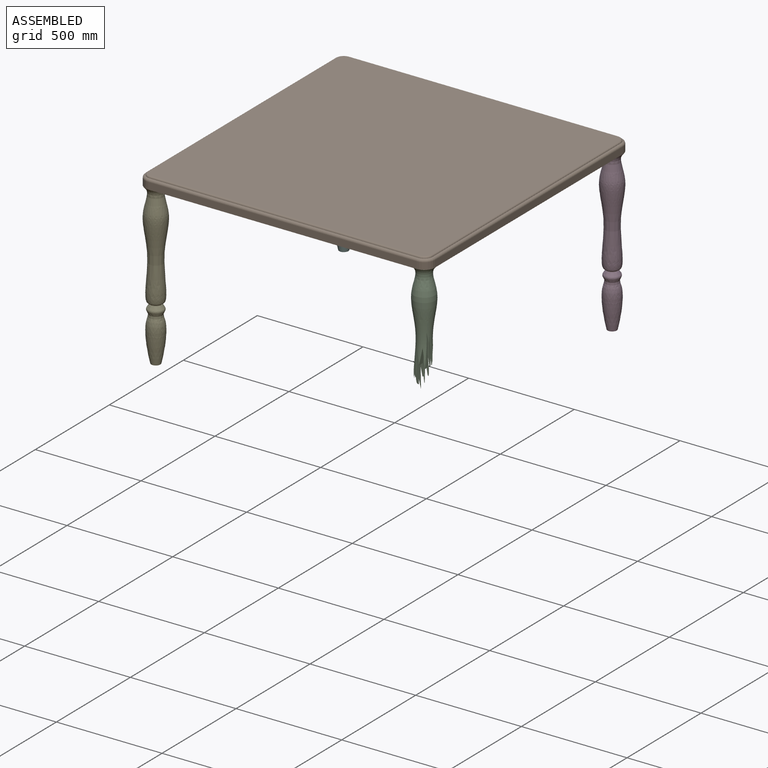
[diagram: assembled view]
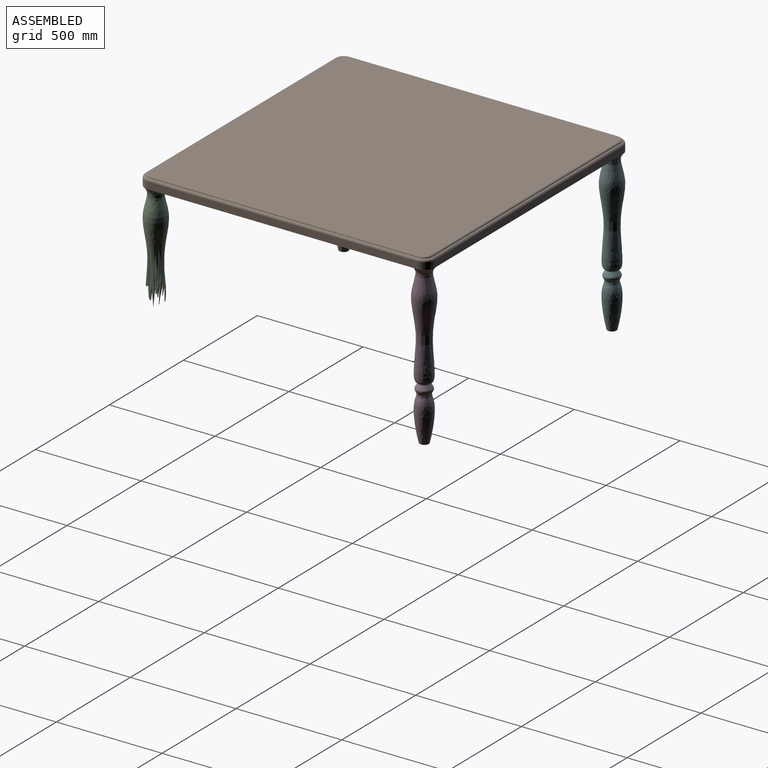
[diagram: assembled view, second angle]
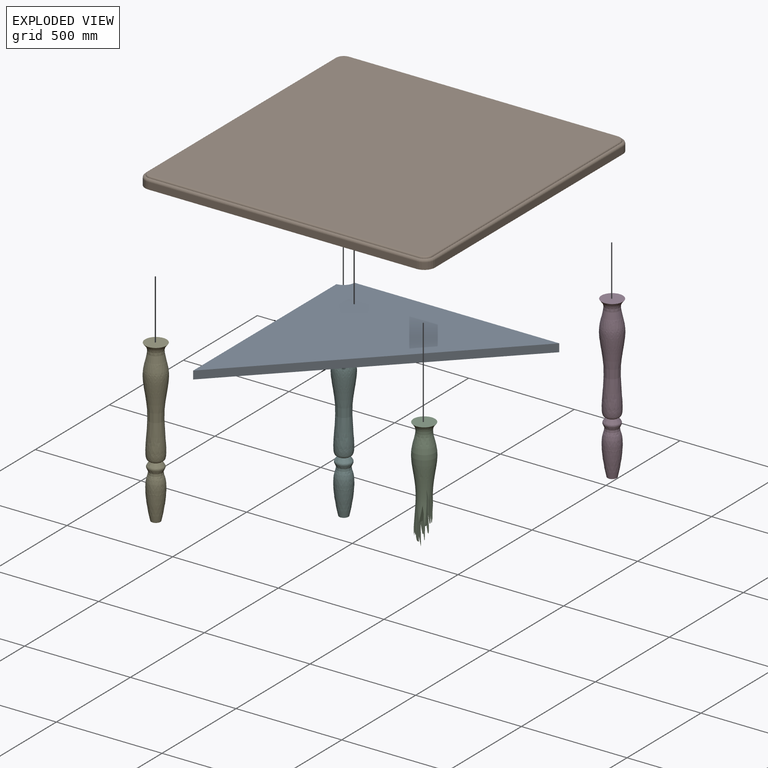
[diagram: exploded view]
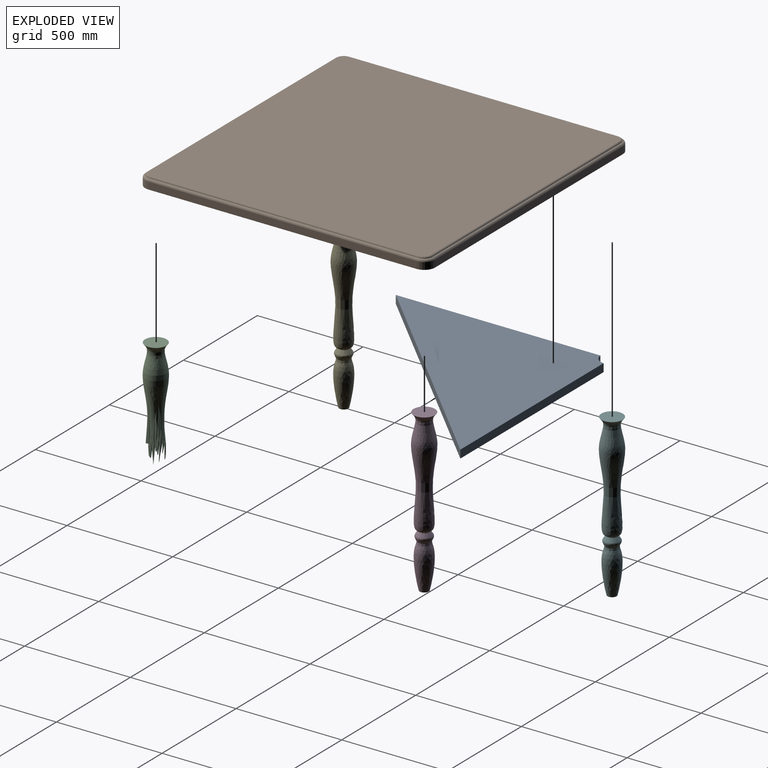
[diagram: exploded view, second angle]
ASSEMBLY  parts=6 mates=5
PART A: 6 faces, bbox 1018.9x1018.9x38.1 mm
  f0: plane 1018.86x1018.86mm, normal (0,0,-1), area 517068.7mm2, adj f1,f3,f4,f5
  f1: plane 968.12x38.1mm, normal (0,1,0), area 36885.4mm2, adj f0,f2,f3,f4
  f2: plane 1018.86x1018.86mm, normal (0,0,1), area 517068.7mm2, adj f1,f3,f4,f5
  f3: plane 1018.86x1018.86mm, normal (0.71,-0.71,0), area 54897.8mm2, adj f0,f1,f2,f5
  f4: cylinder r=53.34mm len=50.74mm, axis (0,0,1), area 2998.6mm2, adj f0,f1,f2,f5
  f5: plane 968.12x38.1mm, normal (-1,0,0), area 36885.4mm2, adj f0,f2,f3,f4
PART B: 31 faces, bbox 1380x1380x50.8 mm
  f0: plane 1270x32.26mm, normal (0,-1,0), area 40964.9mm2, adj f3,f4,f8,f19
  f1: plane 1270x32.26mm, normal (1,0,0), area 40964.9mm2, adj f4,f5,f8,f23
  f2: plane 1270x32.26mm, normal (-1,0,0), area 40964.9mm2, adj f3,f7,f8,f15
  f3: cylinder r=50.8mm len=50.8mm, axis (0,0,-1), area 2573.9mm2, adj f0,f2,f8,f17
  f4: cylinder r=50.8mm len=50.8mm, axis (0,0,-1), area 2573.9mm2, adj f0,f1,f8,f21
  f5: cylinder r=50.8mm len=50.8mm, axis (0,0,-1), area 2573.9mm2, adj f1,f6,f8,f9
  f6: plane 1270x32.26mm, normal (0,1,0), area 40964.9mm2, adj f5,f7,f8,f11
  f7: cylinder r=50.8mm len=50.8mm, axis (0,0,-1), area 2573.9mm2, adj f2,f6,f8,f13
  f8: plane 1371.6x1371.6mm, normal (0,0,-1), area 1353186mm2, adj f0,f1,f2,f3,f4,f5,f6,f7
  f9: torus R=39.84mm, axis (0,0,-1), area 1270.6mm2, adj f5,f10,f11,f23
  f10: torus R=32.08mm, axis (0,0,-1), area 695mm2, adj f9,f12,f24,f25
  f11: cylinder r=10.96mm len=1270mm, axis (1,0,0), area 21957.5mm2, adj f6,f9,f12,f13
  f12: cylinder r=7.68mm len=1270mm, axis (1,0,0), area 15205.3mm2, adj f10,f11,f14,f25
  f13: torus R=39.84mm, axis (0,0,-1), area 1270.6mm2, adj f7,f11,f14,f15
  f14: torus R=32.08mm, axis (0,0,-1), area 695mm2, adj f12,f13,f16,f25
  f15: cylinder r=10.96mm len=1270mm, axis (0,1,0), area 21957.5mm2, adj f2,f13,f16,f17
  f16: cylinder r=7.68mm len=1270mm, axis (0,1,0), area 15205.3mm2, adj f14,f15,f18,f25
  f17: torus R=39.84mm, axis (0,0,-1), area 1270.6mm2, adj f3,f15,f18,f19
  f18: torus R=32.08mm, axis (0,0,-1), area 695mm2, adj f16,f17,f20,f25
  f19: cylinder r=10.96mm len=1270mm, axis (-1,0,0), area 21957.5mm2, adj f0,f17,f20,f21
  f20: cylinder r=7.68mm len=1270mm, axis (-1,0,0), area 15205.3mm2, adj f18,f19,f22,f25
  f21: torus R=39.84mm, axis (0,0,-1), area 1270.6mm2, adj f4,f19,f22,f23
  f22: torus R=32.08mm, axis (0,0,-1), area 695mm2, adj f20,f21,f24,f25
  f23: cylinder r=10.96mm len=1270mm, axis (0,-1,0), area 21957.5mm2, adj f1,f9,f21,f24
  f24: cylinder r=7.68mm len=1270mm, axis (0,-1,0), area 15205.3mm2, adj f10,f22,f23,f25
  f25: plane 1334.17x1334.17mm, normal (0,0,1), area 1779122.7mm2, adj f10,f12,f14,f16,f18,f20,f22,f24
  f26: plane 976.73x38.1mm, normal (1,0,0), area 37213.5mm2, adj f8,f27,f29,f30
  f27: cylinder r=50.8mm len=50.8mm, axis (0,0,-1), area 3040.2mm2, adj f8,f26,f28,f30
  f28: plane 976.73x38.1mm, normal (0,-1,0), area 37213.5mm2, adj f8,f27,f29,f30
  f29: plane 1027.53x1027.53mm, normal (-0.71,0.71,0), area 55365.1mm2, adj f8,f26,f28,f30
  f30: plane 1027.53x1027.53mm, normal (0,0,-1), area 525885.3mm2, adj f26,f27,f28,f29
PART C: 47 faces, bbox 105.6x105.6x530.3 mm
  f0: revolved ~493.61x102.73mm, area 96669.6mm2, adj f2,f4,f5,f6,f7,f9,f10,f13
  f1: revolved ~18.35x11.54mm, area 68.3mm2, adj f5,f9,f37,f46
  f2: plane 123.04x9.78mm, normal (1,0,0), area 626.9mm2, adj f0,f7,f30,f41,f45
  f3: plane 123.04x12.93mm, normal (1,0,0), area 798.1mm2, adj f8,f31,f39,f40
  f4: plane 123.04x17.03mm, normal (1,0,0), area 1404.5mm2, adj f0,f5,f32,f33,f35,f36,f38
  f5: plane 168.79x25.74mm, normal (-0.99,0,-0.13), area 2455.7mm2, adj f0,f1,f4,f37,f38,f44,f46
  f6: plane 59x8.04mm, normal (-0.99,0,-0.13), area 87.8mm2, adj f0,f43
  f7: plane 152.86x20.83mm, normal (-0.99,0,-0.13), area 659.7mm2, adj f0,f2,f41,f42
  f8: plane 123.42x16.81mm, normal (-0.99,0,-0.13), area 805.4mm2, adj f3,f39,f40
  f9: plane 177.78x29.61mm, normal (1,0,0.02), area 3248.1mm2, adj f0,f1,f16,f37,f38,f44,f46
  f10: plane 141.8x7.84mm, normal (1,0,0.02), area 386.6mm2, adj f0,f13,f43
  f11: plane 159.7x11.09mm, normal (1,0,0.02), area 715.7mm2, adj f14,f41,f42
  f12: plane 130.27x13.65mm, normal (1,0,0.02), area 889.3mm2, adj f15,f39,f40
  f13: plane 66.32x12.81mm, normal (-0.99,0,-0.17), area 158.1mm2, adj f0,f10,f17,f43
  f14: plane 64.72x11.2mm, normal (-0.99,0,-0.17), area 469.3mm2, adj f11,f18,f41,f42
  f15: plane 64.72x13.65mm, normal (-0.99,0,-0.17), area 673.8mm2, adj f12,f19,f39,f40
  f16: plane 66.32x27.29mm, normal (-0.99,0,-0.17), area 1494.4mm2, adj f0,f9,f20,f38
  f17: plane 58.43x10.35mm, normal (0.99,0,-0.16), area 120.2mm2, adj f0,f13,f43
  f18: plane 75.29x11.82mm, normal (0.99,0,-0.16), area 567.2mm2, adj f14,f21,f41,f42
  f19: plane 75.29x14.76mm, normal (0.99,0,-0.16), area 824.1mm2, adj f15,f22,f39,f40
  f20: plane 77.21x27.74mm, normal (0.99,0,-0.16), area 1649mm2, adj f0,f16,f23,f38
  f21: plane 87.74x11.2mm, normal (-0.99,0,-0.13), area 627.4mm2, adj f18,f24,f41,f42
  f22: plane 87.74x14.76mm, normal (-0.99,0,-0.13), area 898.8mm2, adj f19,f25,f39,f40
  f23: plane 90.6x20.84mm, normal (-0.99,0,-0.13), area 1522.7mm2, adj f0,f20,f26,f38
  f24: plane 154.95x11.18mm, normal (1,0,-0.01), area 1136.1mm2, adj f0,f21,f27,f41,f42
  f25: plane 154.95x21.8mm, normal (1,0,-0.01), area 2120mm2, adj f22,f28,f39,f40
  f26: plane 154.95x18.36mm, normal (1,0,-0.01), area 1683.6mm2, adj f0,f23,f29,f38
  f27: plane 47.86x10.93mm, normal (-1,0,-0.08), area 201.9mm2, adj f0,f24,f41
  f28: plane 133.7x21.8mm, normal (-1,0,-0.08), area 1821.8mm2, adj f0,f25,f39,f40
  f29: plane 52.12x12.48mm, normal (-1,0,-0.08), area 266.5mm2, adj f0,f26,f38
  f30: plane 43.36x10.86mm, normal (-0.97,0,-0.24), area 119mm2, adj f0,f2,f41,f45
  f31: plane 49.32x12.54mm, normal (-0.97,0,-0.24), area 128.2mm2, adj f0,f3,f39,f40
  f32: plane 42.27x11.75mm, normal (-0.97,0,-0.24), area 280.8mm2, adj f0,f4,f36,f38
  f33: plane 10.79x3.08mm, normal (-0.97,0,-0.24), area 7.7mm2, adj f0,f4,f35
  f34: plane 101.6x101.6mm, normal (0,0,1), area 8107.3mm2, adj f0
  f35: plane 44.7x5.22mm, normal (0,1,-0.04), area 103.1mm2, adj f0,f4,f33,f36
  f36: plane 43.27x6.32mm, normal (0,-0.99,-0.12), area 145.2mm2, adj f0,f4,f32,f35
  f37: plane 63.76x12.07mm, normal (0,1,-0.04), area 436.9mm2, adj f1,f5,f9,f44
  f38: plane 290.59x75.78mm, normal (0,1,-0.01), area 10944.1mm2, adj f0,f4,f5,f9,f16,f20,f23,f26
  f39: plane 245.26x77.62mm, normal (0,-1,-0.06), area 11308.6mm2, adj f0,f3,f8,f12,f15,f19,f22,f25
  f40: plane 246.45x76.47mm, normal (0,1,-0.04), area 11070.8mm2, adj f0,f3,f8,f12,f15,f19,f22,f25
  f41: plane 275.87x75.38mm, normal (0,-1,0.01), area 10927.1mm2, adj f0,f2,f7,f11,f14,f18,f21,f24
  f42: plane 264.84x53.74mm, normal (0,1,-0.07), area 7770.4mm2, adj f0,f7,f11,f14,f18,f21,f24,f41
  f43: plane 247.44x50.06mm, normal (0,-1,-0.03), area 4811.9mm2, adj f0,f6,f10,f13,f17,f42
  f44: plane 88.28x12.56mm, normal (0,-0.99,-0.12), area 488.2mm2, adj f5,f9,f37,f38
  f45: plane 116.6x9.51mm, normal (0,1,-0.07), area 568.2mm2, adj f0,f2,f30
  f46: plane 36.23x8.17mm, normal (0,-1,-0.08), area 139.6mm2, adj f0,f1,f5,f9
PART D: 3 faces, bbox 102.7x102.7x762 mm
  f0: plane 101.6x101.6mm, normal (0,0,1), area 8107.3mm2, adj f1
  f1: revolved ~762x102.66mm, area 188284.3mm2, adj f0,f2
  f2: plane 43.26x43.26mm, normal (0,0,-1), area 1469.9mm2, adj f1
PART E: same geometry as D
PART F: same geometry as D
PLACE A t=(0.37,-0.37,-50.8)mm
PLACE B t=(0,0,-50.8)mm
PLACE C t=(0,0,-50.8)mm
PLACE D t=(1270,1270,-50.8)mm
PLACE E t=(0,0,-50.8)mm
PLACE F t=(0.37,1269.63,-50.8)mm
MATE fastened F.f0 <-> A.f4  axis (0,0,-1) through (-634.63,634.63,-50.8)mm
MATE fastened E.f0 <-> B.f3  axis (0,0,1) through (-635,-635,-50.8)mm
MATE fastened C.f34 <-> B.f4  axis (0,0,-1) through (635,-635,-50.8)mm
MATE fastened A.f2 <-> B.f30  axis (0,0,1) through (-291.25,291.25,-12.7)mm
MATE fastened D.f0 <-> B.f5  axis (0,0,1) through (635,635,-50.8)mm
